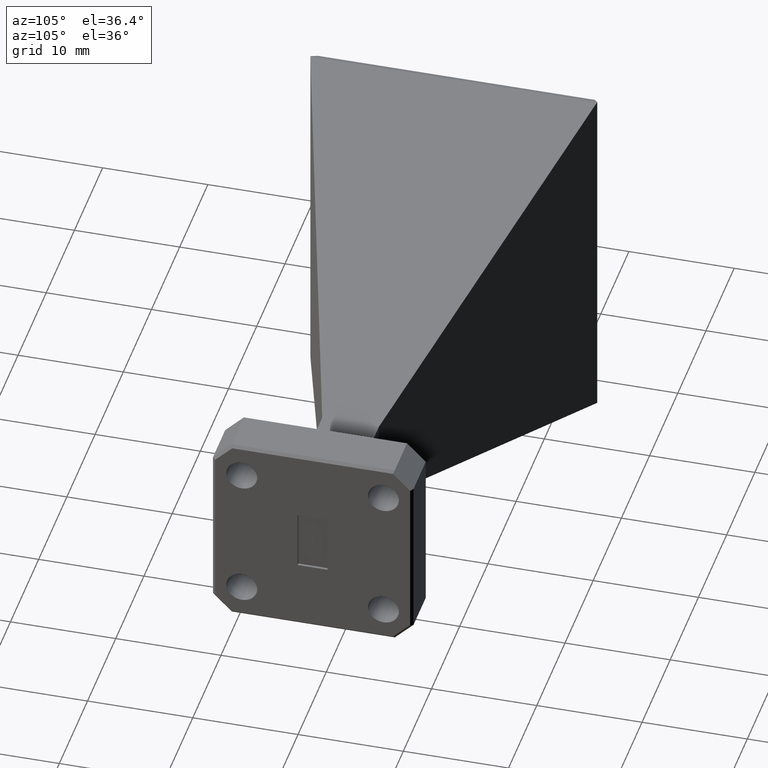
[diagram: clean part render]
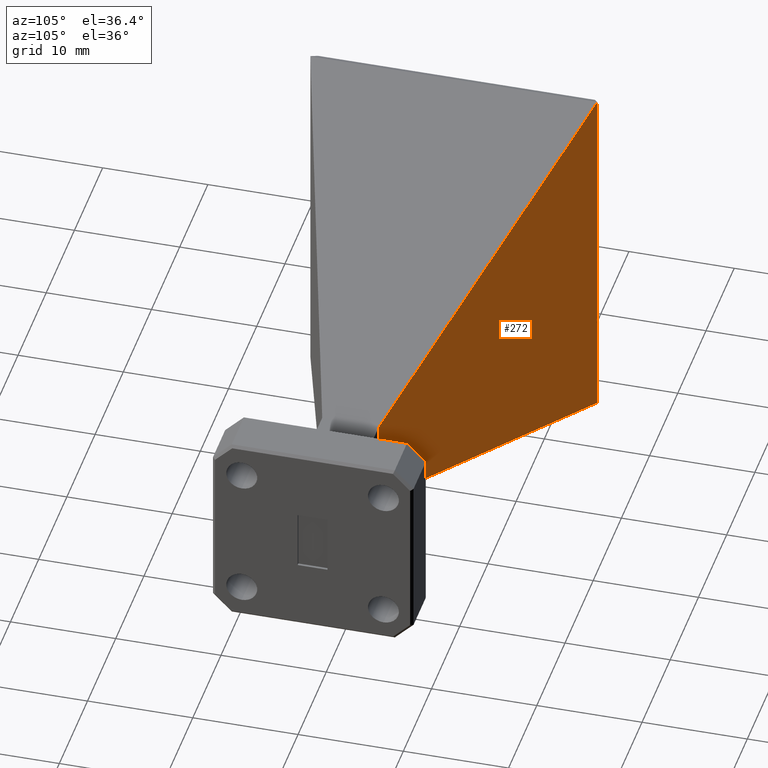
[diagram: same view with one face highlighted and labeled with its STEP entity id]
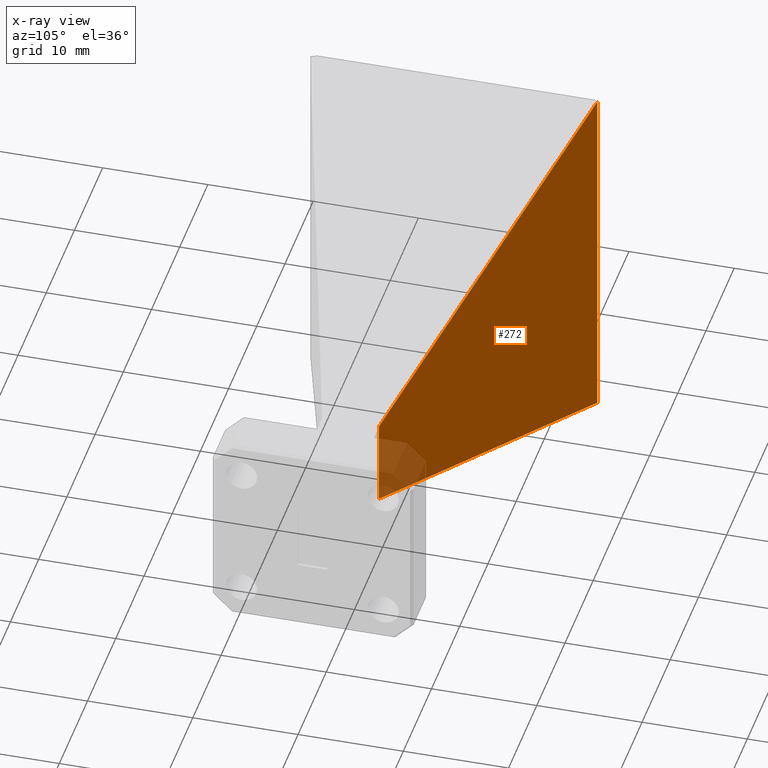
[diagram: x-ray of the same camera — body ghosted, the highlighted face saturated]
A machine part, auxiliary view. The second image highlights one B-rep face of the part: STEP entity #272.
The next image is the same camera in x-ray: the body ghosted, the highlighted face saturated — about 5% of this face is hidden behind the body in this view.
In plain terms, the highlighted planar face has unit normal (0.2862, 0.9582, 0).
Its self-contained STEP definition (entity closure, byte-faithful):
#63 = CARTESIAN_POINT ( 'NONE',  ( -1.781254469744313100, 0.5364154504882674400, -0.6747728487593712700 ) ) ;
#65 = DIRECTION ( 'NONE',  ( 0.9069323634002318700, -0.2708457874372118800, 0.3226704939172253000 ) ) ;
#74 = ORIENTED_EDGE ( 'NONE', *, *, #226, .F. ) ;
#97 = LINE ( 'NONE', #188, #100 ) ;
#100 = VECTOR ( 'NONE', #65, 39.37007874015748900 ) ;
#188 = CARTESIAN_POINT ( 'NONE',  ( -1.810000000000000100, 0.5449999999999998200, -0.6850000000000000500 ) ) ;
#206 = ORIENTED_EDGE ( 'NONE', *, *, #209, .T. ) ;
#209 = EDGE_CURVE ( 'NONE', #248, #312, #457, .T. ) ;
#219 = VECTOR ( 'NONE', #1525, 39.37007874015748100 ) ;
#222 = LINE ( 'NONE', #609, #445 ) ;
#226 = EDGE_CURVE ( 'NONE', #745, #312, #97, .T. ) ;
#248 = VERTEX_POINT ( 'NONE', #1415 ) ;
#272 = ADVANCED_FACE ( 'NONE', ( #492 ), #791, .T. ) ;
#312 = VERTEX_POINT ( 'NONE', #587 ) ;
#380 = DIRECTION ( 'NONE',  ( 0.0000000000000000000, 0.0000000000000000000, 1.000000000000000000 ) ) ;
#445 = VECTOR ( 'NONE', #380, 39.37007874015748100 ) ;
#457 = LINE ( 'NONE', #680, #219 ) ;
#492 = FACE_OUTER_BOUND ( 'NONE', #1324, .T. ) ;
#528 = VERTEX_POINT ( 'NONE', #1339 ) ;
#539 = ORIENTED_EDGE ( 'NONE', *, *, #602, .T. ) ;
#577 = AXIS2_PLACEMENT_3D ( 'NONE', #1028, #583, #1058 ) ;
#583 = DIRECTION ( 'NONE',  ( 0.2861516503910789300, 0.9581843418562326900, 0.0000000000000000000 ) ) ;
#587 = CARTESIAN_POINT ( 'NONE',  ( -0.3400000000000007500, 0.1060000000000001100, -0.1620000000000001400 ) ) ;
#602 = EDGE_CURVE ( 'NONE', #528, #248, #1537, .T. ) ;
#609 = CARTESIAN_POINT ( 'NONE',  ( -1.781254469744313100, 0.5364154504882674400, 0.0000000000000000000 ) ) ;
#637 = CARTESIAN_POINT ( 'NONE',  ( -1.810000000000000100, 0.5449999999999999300, 0.6850000000000000500 ) ) ;
#680 = CARTESIAN_POINT ( 'NONE',  ( -0.3399999999999999700, 0.1060000000000000000, 0.0000000000000000000 ) ) ;
#745 = VERTEX_POINT ( 'NONE', #63 ) ;
#791 = PLANE ( 'NONE',  #577 ) ;
#874 = DIRECTION ( 'NONE',  ( 0.9069323634002318700, -0.2708457874372119400, -0.3226704939172253000 ) ) ;
#1028 = CARTESIAN_POINT ( 'NONE',  ( 0.001223578477588377000, 0.004097176223359715400, 0.0000000000000000000 ) ) ;
#1058 = DIRECTION ( 'NONE',  ( -0.9581843418562325800, 0.2861516503910788700, 0.0000000000000000000 ) ) ;
#1153 = EDGE_CURVE ( 'NONE', #745, #528, #222, .T. ) ;
#1217 = VECTOR ( 'NONE', #874, 39.37007874015748900 ) ;
#1324 = EDGE_LOOP ( 'NONE', ( #74, #1341, #539, #206 ) ) ;
#1339 = CARTESIAN_POINT ( 'NONE',  ( -1.781254469744313300, 0.5364154504882675500, 0.6747728487593713800 ) ) ;
#1341 = ORIENTED_EDGE ( 'NONE', *, *, #1153, .T. ) ;
#1415 = CARTESIAN_POINT ( 'NONE',  ( -0.3400000000000000800, 0.1060000000000001100, 0.1620000000000000900 ) ) ;
#1525 = DIRECTION ( 'NONE',  ( -0.0000000000000000000, 0.0000000000000000000, -1.000000000000000000 ) ) ;
#1537 = LINE ( 'NONE', #637, #1217 ) ;